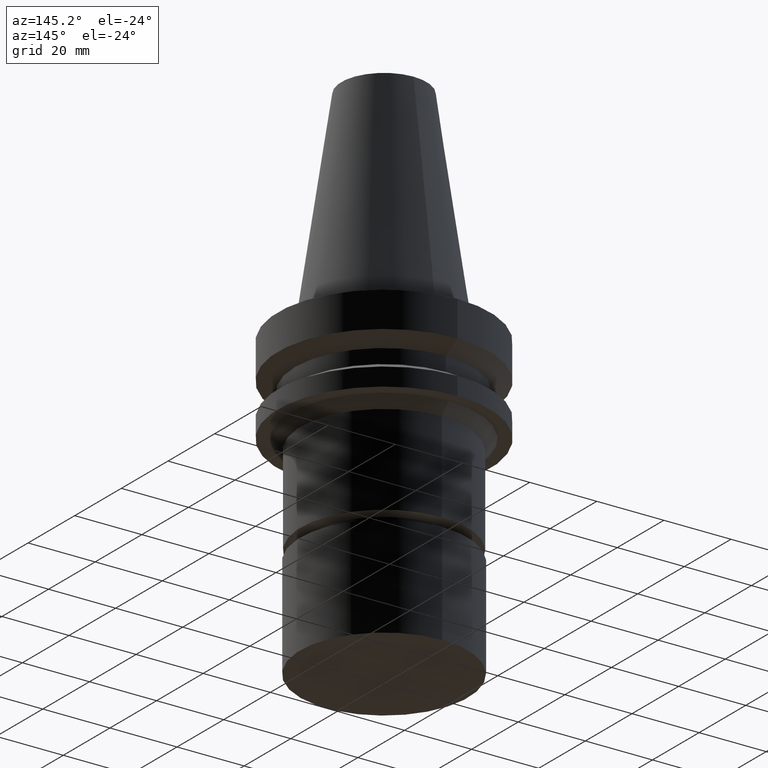
[diagram: clean part render]
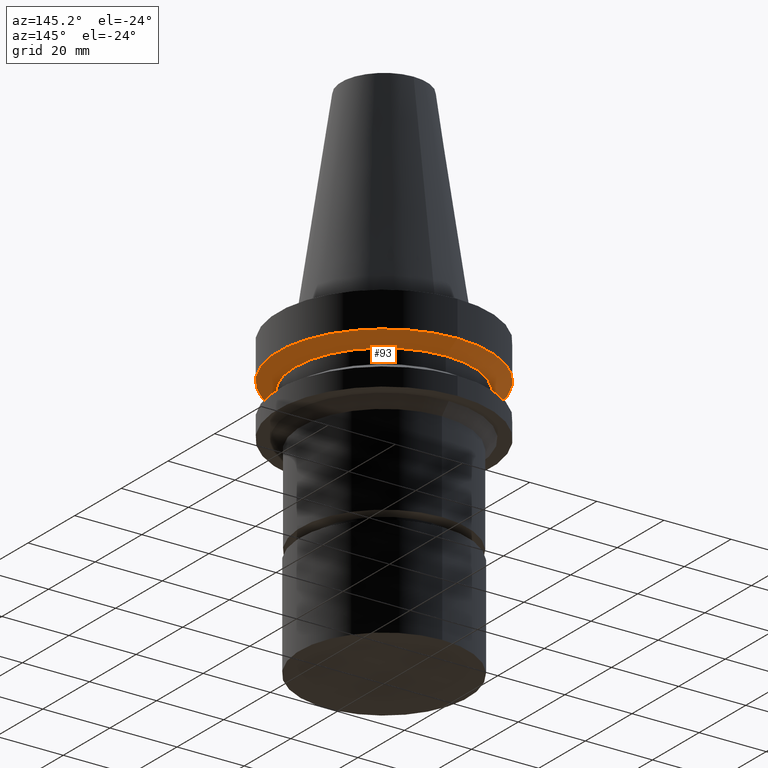
[diagram: same view with one face highlighted and labeled with its STEP entity id]
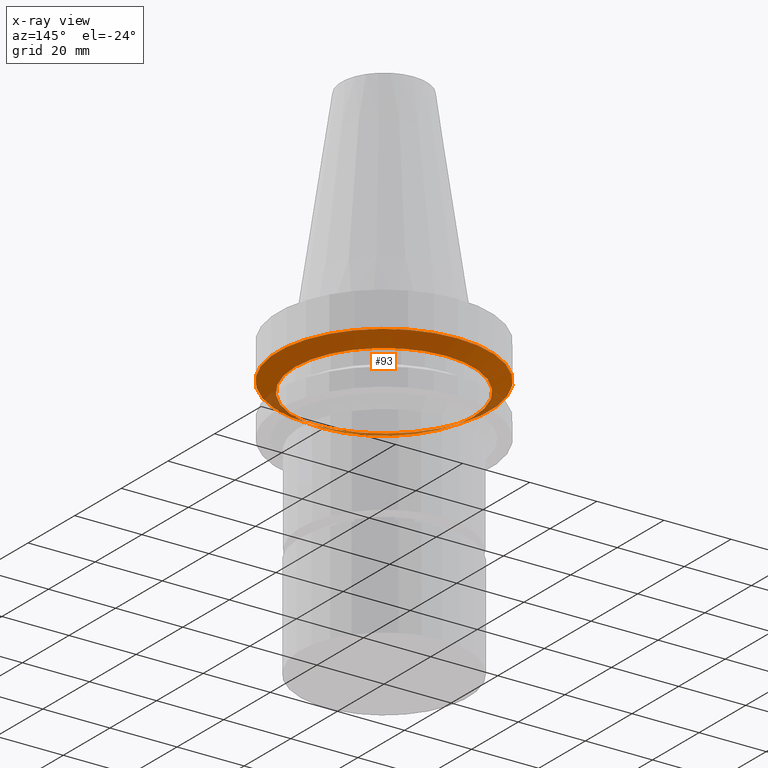
[diagram: x-ray of the same camera — body ghosted, the highlighted face saturated]
A machine part, auxiliary view. The second image highlights one B-rep face of the part: STEP entity #93.
The next image is the same camera in x-ray: the body ghosted, the highlighted face saturated — about 11% of this face is hidden behind the body in this view.
In plain terms, the highlighted conical surface has half-angle 60 deg.
Its self-contained STEP definition (entity closure, byte-faithful):
#81=EDGE_CURVE('Unnamed[1]',#211,#211,#212,.T.);
#86=EDGE_CURVE('Unnamed[1]',#219,#219,#220,.T.);
#93=ADVANCED_FACE('Unnamed[1]',(#229,#230),#231,.T.);
#211=VERTEX_POINT('',#389);
#212=CIRCLE('',#390,26.4999999999994);
#219=VERTEX_POINT('',#399);
#220=CIRCLE('',#400,31.5000000000003);
#229=FACE_BOUND('',#412,.T.);
#230=FACE_BOUND('',#413,.T.);
#231=CONICAL_SURFACE('',#414,28.9999999999999,1.04719755119657);
#389=CARTESIAN_POINT('',(8.8494551369045E-016,26.4999999999995,-14.4522569986152));
#390=AXIS2_PLACEMENT_3D('',#592,#593,#594);
#399=CARTESIAN_POINT('',(7.08182973902924E-016,31.5000000000004,-11.5655056526664));
#400=AXIS2_PLACEMENT_3D('',#601,#602,#603);
#412=EDGE_LOOP('',(#611));
#413=EDGE_LOOP('',(#612));
#414=AXIS2_PLACEMENT_3D('',#613,#614,#615);
#592=CARTESIAN_POINT('',(8.84945513690449E-016,5.72797641111494E-014,-14.4522569986152));
#593=DIRECTION('',(6.12323399573677E-017,-2.45986715532853E-016,-1.0));
#594=DIRECTION('',(1.02351894597382E-032,1.0,-2.45986715532853E-016));
#601=CARTESIAN_POINT('',(7.08182973902923E-016,5.79898665932995E-014,-11.5655056526663));
#602=DIRECTION('',(6.12323399573677E-017,-2.45986715532946E-016,-1.0));
#603=DIRECTION('',(1.02351894597414E-032,1.0,-2.45986715532946E-016));
#611=ORIENTED_EDGE('',*,*,#81,.F.);
#612=ORIENTED_EDGE('',*,*,#86,.T.);
#613=CARTESIAN_POINT('',(7.96564243796687E-016,5.76348153522245E-014,-13.0088813256408));
#614=DIRECTION('',(-6.12323399573677E-017,2.45986715532903E-016,1.0));
#615=DIRECTION('',(1.02351894597368E-032,1.0,-2.45986715532903E-016));